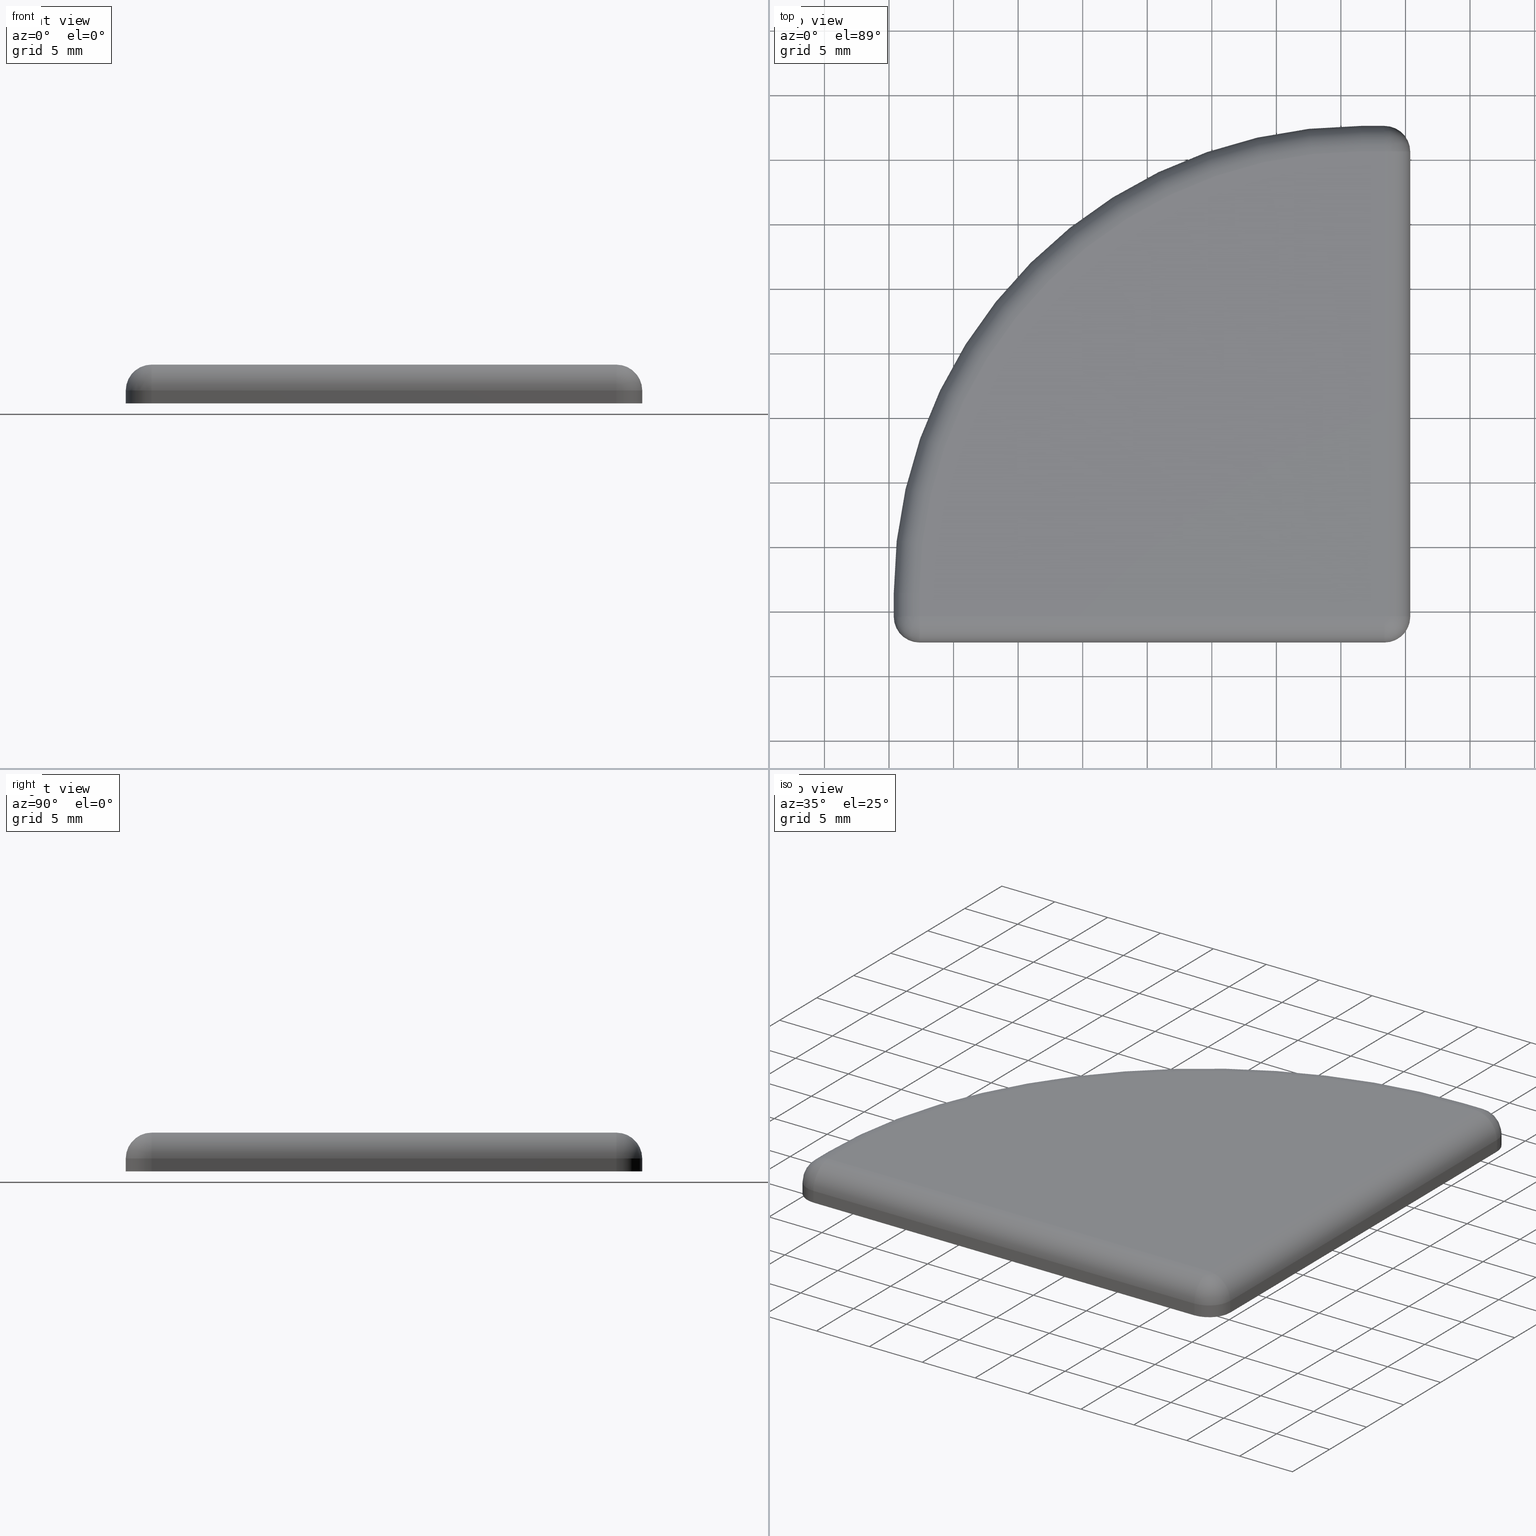
[diagram: canonical four-view strip — front | top / right | iso, engineering-drawing reading convention]
A machine part, canonical four-view strip (front | top / right | iso — engineering-drawing reading convention). The complete STEP part file that produces these views, byte-faithful:
ISO-10303-21;
HEADER;
/* Generated by software containing ST-Developer
 * from STEP Tools, Inc. (www.steptools.com) 
 */

FILE_DESCRIPTION(
/* description */ ('TAPPO 40X40 RAGGIATO NERO'),
/* implementation_level */ '2;1');

FILE_NAME(
/* name */ 'C:\\Users\\tecnico7\\Desktop\\18.071.00.stp',
/* time_stamp */ '2022-07-07T16:30:47+02:00',
/* author */ ('tecnico7'),
/* organization */ (''),
/* preprocessor_version */ 'ST-DEVELOPER v18.1',
/* originating_system */ 'Autodesk Inventor 2022',
/* authorisation */ '');

FILE_SCHEMA (('AUTOMOTIVE_DESIGN { 1 0 10303 214 3 1 1 }'));
ENDSEC;

DATA;
#10=MECHANICAL_DESIGN_GEOMETRIC_PRESENTATION_REPRESENTATION('',(#13),#506);
#11=SHAPE_REPRESENTATION_RELATIONSHIP('SRR','None',#513,#12);
#12=ADVANCED_BREP_SHAPE_REPRESENTATION('',(#14),#505);
#13=STYLED_ITEM('',(#522),#14);
#14=MANIFOLD_SOLID_BREP('Solido1',#276);
#15=PLANE('',#322);
#16=PLANE('',#325);
#17=PLANE('',#326);
#18=PLANE('',#329);
#19=PLANE('',#332);
#20=PLANE('',#333);
#21=SPHERICAL_SURFACE('',#311,2.);
#22=SPHERICAL_SURFACE('',#316,2.);
#23=SPHERICAL_SURFACE('',#318,2.);
#24=TOROIDAL_SURFACE('',#305,34.21,2.);
#25=FACE_OUTER_BOUND('',#43,.T.);
#26=FACE_OUTER_BOUND('',#44,.T.);
#27=FACE_OUTER_BOUND('',#45,.T.);
#28=FACE_OUTER_BOUND('',#46,.T.);
#29=FACE_OUTER_BOUND('',#47,.T.);
#30=FACE_OUTER_BOUND('',#48,.T.);
#31=FACE_OUTER_BOUND('',#49,.T.);
#32=FACE_OUTER_BOUND('',#50,.T.);
#33=FACE_OUTER_BOUND('',#51,.T.);
#34=FACE_OUTER_BOUND('',#52,.T.);
#35=FACE_OUTER_BOUND('',#53,.T.);
#36=FACE_OUTER_BOUND('',#54,.T.);
#37=FACE_OUTER_BOUND('',#55,.T.);
#38=FACE_OUTER_BOUND('',#56,.T.);
#39=FACE_OUTER_BOUND('',#57,.T.);
#40=FACE_OUTER_BOUND('',#58,.T.);
#41=FACE_OUTER_BOUND('',#59,.T.);
#42=FACE_OUTER_BOUND('',#60,.T.);
#43=EDGE_LOOP('',(#176,#177,#178,#179));
#44=EDGE_LOOP('',(#180,#181,#182,#183));
#45=EDGE_LOOP('',(#184,#185,#186,#187));
#46=EDGE_LOOP('',(#188,#189,#190,#191));
#47=EDGE_LOOP('',(#192,#193,#194));
#48=EDGE_LOOP('',(#195,#196,#197,#198));
#49=EDGE_LOOP('',(#199,#200,#201));
#50=EDGE_LOOP('',(#202,#203,#204));
#51=EDGE_LOOP('',(#205,#206,#207,#208));
#52=EDGE_LOOP('',(#209,#210,#211,#212));
#53=EDGE_LOOP('',(#213,#214,#215,#216));
#54=EDGE_LOOP('',(#217,#218,#219,#220));
#55=EDGE_LOOP('',(#221,#222,#223,#224,#225));
#56=EDGE_LOOP('',(#226,#227,#228,#229));
#57=EDGE_LOOP('',(#230,#231,#232,#233));
#58=EDGE_LOOP('',(#234,#235,#236,#237));
#59=EDGE_LOOP('',(#238,#239,#240,#241));
#60=EDGE_LOOP('',(#242,#243,#244,#245,#246,#247,#248,#249));
#61=LINE('',#432,#81);
#62=LINE('',#435,#82);
#63=LINE('',#440,#83);
#64=LINE('',#443,#84);
#65=LINE('',#454,#85);
#66=LINE('',#455,#86);
#67=LINE('',#462,#87);
#68=LINE('',#464,#88);
#69=LINE('',#471,#89);
#70=LINE('',#474,#90);
#71=LINE('',#477,#91);
#72=LINE('',#478,#92);
#73=LINE('',#481,#93);
#74=LINE('',#485,#94);
#75=LINE('',#486,#95);
#76=LINE('',#490,#96);
#77=LINE('',#494,#97);
#78=LINE('',#495,#98);
#79=LINE('',#498,#99);
#80=LINE('',#501,#100);
#81=VECTOR('',#340,10.);
#82=VECTOR('',#343,10.);
#83=VECTOR('',#348,10.);
#84=VECTOR('',#351,10.);
#85=VECTOR('',#364,10.);
#86=VECTOR('',#365,10.);
#87=VECTOR('',#374,10.);
#88=VECTOR('',#377,10.);
#89=VECTOR('',#388,10.);
#90=VECTOR('',#391,10.);
#91=VECTOR('',#394,10.);
#92=VECTOR('',#395,10.);
#93=VECTOR('',#398,10.);
#94=VECTOR('',#403,10.);
#95=VECTOR('',#404,10.);
#96=VECTOR('',#409,10.);
#97=VECTOR('',#414,10.);
#98=VECTOR('',#415,10.);
#99=VECTOR('',#418,10.);
#100=VECTOR('',#423,10.);
#101=CIRCLE('',#300,2.);
#102=CIRCLE('',#301,2.);
#103=CIRCLE('',#303,2.);
#104=CIRCLE('',#304,2.);
#105=CIRCLE('',#306,2.00000000000004);
#106=CIRCLE('',#307,34.21);
#107=CIRCLE('',#308,36.21);
#108=CIRCLE('',#310,2.);
#109=CIRCLE('',#312,2.);
#110=CIRCLE('',#314,2.);
#111=CIRCLE('',#315,2.);
#112=CIRCLE('',#317,2.);
#113=CIRCLE('',#319,2.);
#114=CIRCLE('',#321,2.);
#115=CIRCLE('',#324,2.);
#116=CIRCLE('',#328,2.);
#117=CIRCLE('',#331,36.21);
#118=VERTEX_POINT('',#428);
#119=VERTEX_POINT('',#429);
#120=VERTEX_POINT('',#431);
#121=VERTEX_POINT('',#433);
#122=VERTEX_POINT('',#437);
#123=VERTEX_POINT('',#439);
#124=VERTEX_POINT('',#441);
#125=VERTEX_POINT('',#445);
#126=VERTEX_POINT('',#446);
#127=VERTEX_POINT('',#451);
#128=VERTEX_POINT('',#452);
#129=VERTEX_POINT('',#459);
#130=VERTEX_POINT('',#461);
#131=VERTEX_POINT('',#470);
#132=VERTEX_POINT('',#472);
#133=VERTEX_POINT('',#476);
#134=VERTEX_POINT('',#480);
#135=VERTEX_POINT('',#484);
#136=VERTEX_POINT('',#489);
#137=VERTEX_POINT('',#493);
#138=VERTEX_POINT('',#497);
#139=EDGE_CURVE('',#118,#119,#101,.T.);
#140=EDGE_CURVE('',#119,#120,#61,.T.);
#141=EDGE_CURVE('',#120,#121,#102,.T.);
#142=EDGE_CURVE('',#121,#118,#62,.T.);
#143=EDGE_CURVE('',#121,#122,#103,.T.);
#144=EDGE_CURVE('',#122,#123,#63,.T.);
#145=EDGE_CURVE('',#123,#124,#104,.T.);
#146=EDGE_CURVE('',#124,#121,#64,.T.);
#147=EDGE_CURVE('',#125,#126,#105,.T.);
#148=EDGE_CURVE('',#126,#124,#106,.T.);
#149=EDGE_CURVE('',#123,#125,#107,.T.);
#150=EDGE_CURVE('',#127,#128,#108,.T.);
#151=EDGE_CURVE('',#128,#126,#65,.T.);
#152=EDGE_CURVE('',#125,#127,#66,.T.);
#153=EDGE_CURVE('',#120,#122,#109,.T.);
#154=EDGE_CURVE('',#128,#129,#110,.T.);
#155=EDGE_CURVE('',#129,#130,#67,.T.);
#156=EDGE_CURVE('',#130,#118,#111,.T.);
#157=EDGE_CURVE('',#118,#128,#68,.T.);
#158=EDGE_CURVE('',#127,#129,#112,.T.);
#159=EDGE_CURVE('',#130,#119,#113,.T.);
#160=EDGE_CURVE('',#131,#120,#69,.T.);
#161=EDGE_CURVE('',#131,#132,#114,.T.);
#162=EDGE_CURVE('',#132,#122,#70,.T.);
#163=EDGE_CURVE('',#133,#119,#71,.T.);
#164=EDGE_CURVE('',#133,#131,#72,.T.);
#165=EDGE_CURVE('',#134,#130,#73,.T.);
#166=EDGE_CURVE('',#134,#133,#115,.T.);
#167=EDGE_CURVE('',#135,#129,#74,.T.);
#168=EDGE_CURVE('',#135,#134,#75,.T.);
#169=EDGE_CURVE('',#136,#127,#76,.T.);
#170=EDGE_CURVE('',#136,#135,#116,.T.);
#171=EDGE_CURVE('',#137,#125,#77,.T.);
#172=EDGE_CURVE('',#137,#136,#78,.T.);
#173=EDGE_CURVE('',#138,#123,#79,.T.);
#174=EDGE_CURVE('',#138,#137,#117,.T.);
#175=EDGE_CURVE('',#132,#138,#80,.T.);
#176=ORIENTED_EDGE('',*,*,#139,.T.);
#177=ORIENTED_EDGE('',*,*,#140,.T.);
#178=ORIENTED_EDGE('',*,*,#141,.T.);
#179=ORIENTED_EDGE('',*,*,#142,.T.);
#180=ORIENTED_EDGE('',*,*,#143,.T.);
#181=ORIENTED_EDGE('',*,*,#144,.T.);
#182=ORIENTED_EDGE('',*,*,#145,.T.);
#183=ORIENTED_EDGE('',*,*,#146,.T.);
#184=ORIENTED_EDGE('',*,*,#147,.T.);
#185=ORIENTED_EDGE('',*,*,#148,.T.);
#186=ORIENTED_EDGE('',*,*,#145,.F.);
#187=ORIENTED_EDGE('',*,*,#149,.T.);
#188=ORIENTED_EDGE('',*,*,#150,.T.);
#189=ORIENTED_EDGE('',*,*,#151,.T.);
#190=ORIENTED_EDGE('',*,*,#147,.F.);
#191=ORIENTED_EDGE('',*,*,#152,.T.);
#192=ORIENTED_EDGE('',*,*,#143,.F.);
#193=ORIENTED_EDGE('',*,*,#141,.F.);
#194=ORIENTED_EDGE('',*,*,#153,.T.);
#195=ORIENTED_EDGE('',*,*,#154,.T.);
#196=ORIENTED_EDGE('',*,*,#155,.T.);
#197=ORIENTED_EDGE('',*,*,#156,.T.);
#198=ORIENTED_EDGE('',*,*,#157,.T.);
#199=ORIENTED_EDGE('',*,*,#154,.F.);
#200=ORIENTED_EDGE('',*,*,#150,.F.);
#201=ORIENTED_EDGE('',*,*,#158,.T.);
#202=ORIENTED_EDGE('',*,*,#139,.F.);
#203=ORIENTED_EDGE('',*,*,#156,.F.);
#204=ORIENTED_EDGE('',*,*,#159,.T.);
#205=ORIENTED_EDGE('',*,*,#153,.F.);
#206=ORIENTED_EDGE('',*,*,#160,.F.);
#207=ORIENTED_EDGE('',*,*,#161,.T.);
#208=ORIENTED_EDGE('',*,*,#162,.T.);
#209=ORIENTED_EDGE('',*,*,#140,.F.);
#210=ORIENTED_EDGE('',*,*,#163,.F.);
#211=ORIENTED_EDGE('',*,*,#164,.T.);
#212=ORIENTED_EDGE('',*,*,#160,.T.);
#213=ORIENTED_EDGE('',*,*,#159,.F.);
#214=ORIENTED_EDGE('',*,*,#165,.F.);
#215=ORIENTED_EDGE('',*,*,#166,.T.);
#216=ORIENTED_EDGE('',*,*,#163,.T.);
#217=ORIENTED_EDGE('',*,*,#155,.F.);
#218=ORIENTED_EDGE('',*,*,#167,.F.);
#219=ORIENTED_EDGE('',*,*,#168,.T.);
#220=ORIENTED_EDGE('',*,*,#165,.T.);
#221=ORIENTED_EDGE('',*,*,#142,.F.);
#222=ORIENTED_EDGE('',*,*,#146,.F.);
#223=ORIENTED_EDGE('',*,*,#148,.F.);
#224=ORIENTED_EDGE('',*,*,#151,.F.);
#225=ORIENTED_EDGE('',*,*,#157,.F.);
#226=ORIENTED_EDGE('',*,*,#158,.F.);
#227=ORIENTED_EDGE('',*,*,#169,.F.);
#228=ORIENTED_EDGE('',*,*,#170,.T.);
#229=ORIENTED_EDGE('',*,*,#167,.T.);
#230=ORIENTED_EDGE('',*,*,#152,.F.);
#231=ORIENTED_EDGE('',*,*,#171,.F.);
#232=ORIENTED_EDGE('',*,*,#172,.T.);
#233=ORIENTED_EDGE('',*,*,#169,.T.);
#234=ORIENTED_EDGE('',*,*,#149,.F.);
#235=ORIENTED_EDGE('',*,*,#173,.F.);
#236=ORIENTED_EDGE('',*,*,#174,.T.);
#237=ORIENTED_EDGE('',*,*,#171,.T.);
#238=ORIENTED_EDGE('',*,*,#144,.F.);
#239=ORIENTED_EDGE('',*,*,#162,.F.);
#240=ORIENTED_EDGE('',*,*,#175,.T.);
#241=ORIENTED_EDGE('',*,*,#173,.T.);
#242=ORIENTED_EDGE('',*,*,#168,.F.);
#243=ORIENTED_EDGE('',*,*,#170,.F.);
#244=ORIENTED_EDGE('',*,*,#172,.F.);
#245=ORIENTED_EDGE('',*,*,#174,.F.);
#246=ORIENTED_EDGE('',*,*,#175,.F.);
#247=ORIENTED_EDGE('',*,*,#161,.F.);
#248=ORIENTED_EDGE('',*,*,#164,.F.);
#249=ORIENTED_EDGE('',*,*,#166,.F.);
#250=CYLINDRICAL_SURFACE('',#299,2.);
#251=CYLINDRICAL_SURFACE('',#302,2.);
#252=CYLINDRICAL_SURFACE('',#309,2.);
#253=CYLINDRICAL_SURFACE('',#313,2.);
#254=CYLINDRICAL_SURFACE('',#320,2.);
#255=CYLINDRICAL_SURFACE('',#323,2.);
#256=CYLINDRICAL_SURFACE('',#327,2.);
#257=CYLINDRICAL_SURFACE('',#330,36.21);
#258=ADVANCED_FACE('',(#25),#250,.T.);
#259=ADVANCED_FACE('',(#26),#251,.T.);
#260=ADVANCED_FACE('',(#27),#24,.T.);
#261=ADVANCED_FACE('',(#28),#252,.T.);
#262=ADVANCED_FACE('',(#29),#21,.T.);
#263=ADVANCED_FACE('',(#30),#253,.T.);
#264=ADVANCED_FACE('',(#31),#22,.T.);
#265=ADVANCED_FACE('',(#32),#23,.T.);
#266=ADVANCED_FACE('',(#33),#254,.T.);
#267=ADVANCED_FACE('',(#34),#15,.T.);
#268=ADVANCED_FACE('',(#35),#255,.T.);
#269=ADVANCED_FACE('',(#36),#16,.T.);
#270=ADVANCED_FACE('',(#37),#17,.T.);
#271=ADVANCED_FACE('',(#38),#256,.T.);
#272=ADVANCED_FACE('',(#39),#18,.T.);
#273=ADVANCED_FACE('',(#40),#257,.T.);
#274=ADVANCED_FACE('',(#41),#19,.T.);
#275=ADVANCED_FACE('',(#42),#20,.F.);
#276=CLOSED_SHELL('',(#258,#259,#260,#261,#262,#263,#264,#265,#266,#267,
#268,#269,#270,#271,#272,#273,#274,#275));
#277=DERIVED_UNIT_ELEMENT(#280,1.);
#278=DERIVED_UNIT_ELEMENT(#508,-3.);
#279=DIMENSIONAL_EXPONENTS(1.,0.,0.,0.,0.,0.,0.);
#280=(
CONVERSION_BASED_UNIT('gram',#282)
MASS_UNIT()
NAMED_UNIT(#279)
);
#281=(
MASS_UNIT()
NAMED_UNIT(*)
SI_UNIT(.KILO.,.GRAM.)
);
#282=MASS_MEASURE_WITH_UNIT(MASS_MEASURE(0.001),#281);
#283=DERIVED_UNIT((#277,#278));
#284=MEASURE_REPRESENTATION_ITEM('density measure',
POSITIVE_RATIO_MEASURE(1.13),#283);
#285=PROPERTY_DEFINITION_REPRESENTATION(#290,#287);
#286=PROPERTY_DEFINITION_REPRESENTATION(#291,#288);
#287=REPRESENTATION('material name',(#289),#505);
#288=REPRESENTATION('density',(#284),#505);
#289=DESCRIPTIVE_REPRESENTATION_ITEM('NYLON','NYLON');
#290=PROPERTY_DEFINITION('material property','material name',#515);
#291=PROPERTY_DEFINITION('material property','density of part',#515);
#292=DATE_TIME_ROLE('creation_date');
#293=APPLIED_DATE_AND_TIME_ASSIGNMENT(#294,#292,(#515));
#294=DATE_AND_TIME(#295,#296);
#295=CALENDAR_DATE(2014,7,8);
#296=LOCAL_TIME(0,0,0.,#297);
#297=COORDINATED_UNIVERSAL_TIME_OFFSET(0,0,.BEHIND.);
#298=AXIS2_PLACEMENT_3D('placement',#426,#334,#335);
#299=AXIS2_PLACEMENT_3D('',#427,#336,#337);
#300=AXIS2_PLACEMENT_3D('',#430,#338,#339);
#301=AXIS2_PLACEMENT_3D('',#434,#341,#342);
#302=AXIS2_PLACEMENT_3D('',#436,#344,#345);
#303=AXIS2_PLACEMENT_3D('',#438,#346,#347);
#304=AXIS2_PLACEMENT_3D('',#442,#349,#350);
#305=AXIS2_PLACEMENT_3D('',#444,#352,#353);
#306=AXIS2_PLACEMENT_3D('',#447,#354,#355);
#307=AXIS2_PLACEMENT_3D('',#448,#356,#357);
#308=AXIS2_PLACEMENT_3D('',#449,#358,#359);
#309=AXIS2_PLACEMENT_3D('',#450,#360,#361);
#310=AXIS2_PLACEMENT_3D('',#453,#362,#363);
#311=AXIS2_PLACEMENT_3D('',#456,#366,#367);
#312=AXIS2_PLACEMENT_3D('',#457,#368,#369);
#313=AXIS2_PLACEMENT_3D('',#458,#370,#371);
#314=AXIS2_PLACEMENT_3D('',#460,#372,#373);
#315=AXIS2_PLACEMENT_3D('',#463,#375,#376);
#316=AXIS2_PLACEMENT_3D('',#465,#378,#379);
#317=AXIS2_PLACEMENT_3D('',#466,#380,#381);
#318=AXIS2_PLACEMENT_3D('',#467,#382,#383);
#319=AXIS2_PLACEMENT_3D('',#468,#384,#385);
#320=AXIS2_PLACEMENT_3D('',#469,#386,#387);
#321=AXIS2_PLACEMENT_3D('',#473,#389,#390);
#322=AXIS2_PLACEMENT_3D('',#475,#392,#393);
#323=AXIS2_PLACEMENT_3D('',#479,#396,#397);
#324=AXIS2_PLACEMENT_3D('',#482,#399,#400);
#325=AXIS2_PLACEMENT_3D('',#483,#401,#402);
#326=AXIS2_PLACEMENT_3D('',#487,#405,#406);
#327=AXIS2_PLACEMENT_3D('',#488,#407,#408);
#328=AXIS2_PLACEMENT_3D('',#491,#410,#411);
#329=AXIS2_PLACEMENT_3D('',#492,#412,#413);
#330=AXIS2_PLACEMENT_3D('',#496,#416,#417);
#331=AXIS2_PLACEMENT_3D('',#499,#419,#420);
#332=AXIS2_PLACEMENT_3D('',#500,#421,#422);
#333=AXIS2_PLACEMENT_3D('',#502,#424,#425);
#334=DIRECTION('axis',(0.,0.,1.));
#335=DIRECTION('refdir',(1.,0.,0.));
#336=DIRECTION('center_axis',(-6.41462192005654E-15,1.,0.));
#337=DIRECTION('ref_axis',(0.707106781186549,4.71027737605131E-15,0.707106781186546));
#338=DIRECTION('center_axis',(-6.66133814775093E-15,1.,0.));
#339=DIRECTION('ref_axis',(0.,0.,1.));
#340=DIRECTION('',(-6.41462192005654E-15,1.,0.));
#341=DIRECTION('center_axis',(4.44089209850062E-15,-1.,0.));
#342=DIRECTION('ref_axis',(1.,4.44089209850062E-15,0.));
#343=DIRECTION('',(6.41462192005654E-15,-1.,0.));
#344=DIRECTION('center_axis',(-1.,1.29009155934115E-13,0.));
#345=DIRECTION('ref_axis',(9.10653626036591E-14,0.707106781186546,0.707106781186549));
#346=DIRECTION('center_axis',(-1.,1.28785870856518E-13,0.));
#347=DIRECTION('ref_axis',(0.,0.,1.));
#348=DIRECTION('',(-1.,1.29009155934115E-13,0.));
#349=DIRECTION('center_axis',(1.,-1.28785870856518E-13,0.));
#350=DIRECTION('ref_axis',(1.28785870856518E-13,1.,0.));
#351=DIRECTION('',(1.,-1.29009155934115E-13,0.));
#352=DIRECTION('center_axis',(0.,0.,1.));
#353=DIRECTION('ref_axis',(1.,0.,0.));
#354=DIRECTION('center_axis',(-4.44089209850053E-15,1.,0.));
#355=DIRECTION('ref_axis',(-1.,-4.44089209850053E-15,0.));
#356=DIRECTION('center_axis',(0.,0.,-1.));
#357=DIRECTION('ref_axis',(-0.707106781186547,0.707106781186548,0.));
#358=DIRECTION('center_axis',(0.,0.,1.));
#359=DIRECTION('ref_axis',(-0.707106781186547,0.707106781186548,0.));
#360=DIRECTION('center_axis',(-1.27148446954296E-13,-1.,0.));
#361=DIRECTION('ref_axis',(-0.707106781186547,8.94952701449752E-14,0.707106781186548));
#362=DIRECTION('center_axis',(1.27675647831893E-13,1.,0.));
#363=DIRECTION('ref_axis',(-1.,1.27675647831893E-13,0.));
#364=DIRECTION('',(1.27148446954296E-13,1.,0.));
#365=DIRECTION('',(-1.27148446954296E-13,-1.,0.));
#366=DIRECTION('center_axis',(0.408248290463852,-0.816496580927711,0.408248290463903));
#367=DIRECTION('ref_axis',(0.57735026918958,0.577350269189647,0.577350269189651));
#368=DIRECTION('center_axis',(0.,0.,1.));
#369=DIRECTION('ref_axis',(1.,0.,0.));
#370=DIRECTION('center_axis',(1.,0.,0.));
#371=DIRECTION('ref_axis',(0.,-0.707106781186547,0.707106781186548));
#372=DIRECTION('center_axis',(1.,0.,0.));
#373=DIRECTION('ref_axis',(0.,0.,1.));
#374=DIRECTION('',(1.,0.,0.));
#375=DIRECTION('center_axis',(-1.,0.,0.));
#376=DIRECTION('ref_axis',(0.,-1.,0.));
#377=DIRECTION('',(-1.,0.,0.));
#378=DIRECTION('center_axis',(-0.816496580927743,0.408248290463872,-0.40824829046382));
#379=DIRECTION('ref_axis',(-0.577350269189602,-0.577350269189675,0.577350269189601));
#380=DIRECTION('center_axis',(0.,0.,1.));
#381=DIRECTION('ref_axis',(-1.,0.,0.));
#382=DIRECTION('center_axis',(0.408248290463863,-0.408248290463863,-0.816496580927726));
#383=DIRECTION('ref_axis',(0.577350269189626,-0.577350269189626,0.577350269189626));
#384=DIRECTION('center_axis',(0.,0.,1.));
#385=DIRECTION('ref_axis',(0.,-1.,0.));
#386=DIRECTION('center_axis',(0.,0.,1.));
#387=DIRECTION('ref_axis',(1.,0.,0.));
#388=DIRECTION('',(0.,0.,1.));
#389=DIRECTION('center_axis',(0.,0.,1.));
#390=DIRECTION('ref_axis',(1.,0.,0.));
#391=DIRECTION('',(0.,0.,1.));
#392=DIRECTION('center_axis',(1.,6.41462192005654E-15,0.));
#393=DIRECTION('ref_axis',(-6.41462192005654E-15,1.,0.));
#394=DIRECTION('',(0.,0.,1.));
#395=DIRECTION('',(-6.41462192005654E-15,1.,0.));
#396=DIRECTION('center_axis',(0.,0.,1.));
#397=DIRECTION('ref_axis',(0.,-1.,0.));
#398=DIRECTION('',(0.,0.,1.));
#399=DIRECTION('center_axis',(0.,0.,1.));
#400=DIRECTION('ref_axis',(0.,-1.,0.));
#401=DIRECTION('center_axis',(0.,-1.,0.));
#402=DIRECTION('ref_axis',(1.,0.,0.));
#403=DIRECTION('',(0.,0.,1.));
#404=DIRECTION('',(1.,0.,0.));
#405=DIRECTION('center_axis',(0.,0.,1.));
#406=DIRECTION('ref_axis',(1.,0.,0.));
#407=DIRECTION('center_axis',(0.,0.,1.));
#408=DIRECTION('ref_axis',(-1.,0.,0.));
#409=DIRECTION('',(0.,0.,1.));
#410=DIRECTION('center_axis',(0.,0.,1.));
#411=DIRECTION('ref_axis',(-1.,0.,0.));
#412=DIRECTION('center_axis',(-1.,1.27148446954296E-13,0.));
#413=DIRECTION('ref_axis',(-1.27148446954296E-13,-1.,0.));
#414=DIRECTION('',(0.,0.,1.));
#415=DIRECTION('',(-1.27148446954296E-13,-1.,0.));
#416=DIRECTION('center_axis',(0.,0.,1.));
#417=DIRECTION('ref_axis',(0.,1.,0.));
#418=DIRECTION('',(0.,0.,1.));
#419=DIRECTION('center_axis',(0.,0.,1.));
#420=DIRECTION('ref_axis',(0.,1.,0.));
#421=DIRECTION('center_axis',(1.29009155934115E-13,1.,0.));
#422=DIRECTION('ref_axis',(-1.,1.29009155934115E-13,0.));
#423=DIRECTION('',(-1.,1.29009155934115E-13,0.));
#424=DIRECTION('center_axis',(0.,0.,1.));
#425=DIRECTION('ref_axis',(1.,0.,0.));
#426=CARTESIAN_POINT('',(0.,0.,0.));
#427=CARTESIAN_POINT('Origin',(43.3692019380737,11.7620032159202,1.));
#428=CARTESIAN_POINT('',(43.3692019380737,4.63083275760073,3.));
#429=CARTESIAN_POINT('',(45.3692019380737,4.63083275760073,1.));
#430=CARTESIAN_POINT('Origin',(43.3692019380737,4.63083275760072,1.));
#431=CARTESIAN_POINT('',(45.3692019380735,40.6308327576003,1.));
#432=CARTESIAN_POINT('',(45.3692019380737,11.7620032159202,1.));
#433=CARTESIAN_POINT('',(43.3692019380735,40.6308327576003,3.));
#434=CARTESIAN_POINT('Origin',(43.3692019380735,40.6308327576003,1.));
#435=CARTESIAN_POINT('',(43.3692019380737,11.7620032159202,3.));
#436=CARTESIAN_POINT('Origin',(36.2380314797552,40.6308327576012,1.));
#437=CARTESIAN_POINT('',(43.3692019380733,42.6308327576003,1.));
#438=CARTESIAN_POINT('Origin',(43.369201938073,40.6308327576003,1.));
#439=CARTESIAN_POINT('',(41.5792019380735,42.6308327576005,1.));
#440=CARTESIAN_POINT('',(36.2380314797554,42.6308327576012,1.));
#441=CARTESIAN_POINT('',(41.5792019380733,40.6308327576005,3.));
#442=CARTESIAN_POINT('Origin',(41.5792019380733,40.6308327576005,1.));
#443=CARTESIAN_POINT('',(36.2380314797552,40.6308327576012,3.));
#444=CARTESIAN_POINT('Origin',(41.5792019380735,6.42083275760046,1.));
#445=CARTESIAN_POINT('',(5.3692019380735,6.42083275760046,1.));
#446=CARTESIAN_POINT('',(7.36920193807354,6.42083275760047,3.));
#447=CARTESIAN_POINT('Origin',(7.36920193807354,6.42083275760047,1.));
#448=CARTESIAN_POINT('Origin',(41.5792019380735,6.42083275760046,3.));
#449=CARTESIAN_POINT('Origin',(41.5792019380735,6.42083275760046,1.));
#450=CARTESIAN_POINT('Origin',(7.36920193807429,12.6570032159212,1.));
#451=CARTESIAN_POINT('',(5.36920193807327,4.63083275760073,1.));
#452=CARTESIAN_POINT('',(7.36920193807327,4.63083275760047,3.));
#453=CARTESIAN_POINT('Origin',(7.36920193807327,4.63083275760047,1.));
#454=CARTESIAN_POINT('',(7.36920193807429,12.6570032159212,3.));
#455=CARTESIAN_POINT('',(5.3692019380743,12.6570032159215,1.));
#456=CARTESIAN_POINT('Origin',(43.3692019380735,40.6308327576003,1.));
#457=CARTESIAN_POINT('Origin',(43.3692019380735,40.6308327576003,1.));
#458=CARTESIAN_POINT('Origin',(18.2380314797539,4.63083275760073,1.));
#459=CARTESIAN_POINT('',(7.36920193807328,2.63083275760073,1.));
#460=CARTESIAN_POINT('Origin',(7.36920193807328,4.63083275760073,1.));
#461=CARTESIAN_POINT('',(43.3692019380737,2.63083275760073,1.));
#462=CARTESIAN_POINT('',(18.2380314797539,2.63083275760073,1.));
#463=CARTESIAN_POINT('Origin',(43.3692019380737,4.63083275760073,1.));
#464=CARTESIAN_POINT('',(18.2380314797539,4.63083275760073,3.));
#465=CARTESIAN_POINT('Origin',(7.36920193807328,4.63083275760073,1.));
#466=CARTESIAN_POINT('Origin',(7.36920193807328,4.63083275760073,1.));
#467=CARTESIAN_POINT('Origin',(43.3692019380737,4.63083275760073,1.));
#468=CARTESIAN_POINT('Origin',(43.3692019380737,4.63083275760073,1.));
#469=CARTESIAN_POINT('Origin',(43.3692019380735,40.6308327576003,0.));
#470=CARTESIAN_POINT('',(45.3692019380735,40.6308327576003,0.));
#471=CARTESIAN_POINT('',(45.3692019380735,40.6308327576003,0.));
#472=CARTESIAN_POINT('',(43.3692019380733,42.6308327576003,0.));
#473=CARTESIAN_POINT('Origin',(43.3692019380735,40.6308327576003,0.));
#474=CARTESIAN_POINT('',(43.3692019380733,42.6308327576003,0.));
#475=CARTESIAN_POINT('Origin',(45.3692019380737,4.63083275760073,0.));
#476=CARTESIAN_POINT('',(45.3692019380737,4.63083275760073,0.));
#477=CARTESIAN_POINT('',(45.3692019380737,4.63083275760073,0.));
#478=CARTESIAN_POINT('',(45.3692019380737,4.63083275760073,0.));
#479=CARTESIAN_POINT('Origin',(43.3692019380737,4.63083275760073,0.));
#480=CARTESIAN_POINT('',(43.3692019380737,2.63083275760073,0.));
#481=CARTESIAN_POINT('',(43.3692019380737,2.63083275760073,0.));
#482=CARTESIAN_POINT('Origin',(43.3692019380737,4.63083275760073,0.));
#483=CARTESIAN_POINT('Origin',(7.36920193807328,2.63083275760073,0.));
#484=CARTESIAN_POINT('',(7.36920193807328,2.63083275760073,0.));
#485=CARTESIAN_POINT('',(7.36920193807328,2.63083275760073,0.));
#486=CARTESIAN_POINT('',(7.36920193807328,2.63083275760073,0.));
#487=CARTESIAN_POINT('Origin',(29.1068610214345,18.8931736742395,3.));
#488=CARTESIAN_POINT('Origin',(7.36920193807328,4.63083275760073,0.));
#489=CARTESIAN_POINT('',(5.36920193807327,4.63083275760073,0.));
#490=CARTESIAN_POINT('',(5.36920193807327,4.63083275760073,0.));
#491=CARTESIAN_POINT('Origin',(7.36920193807328,4.63083275760073,0.));
#492=CARTESIAN_POINT('Origin',(5.3692019380735,6.42083275760046,0.));
#493=CARTESIAN_POINT('',(5.3692019380735,6.42083275760046,0.));
#494=CARTESIAN_POINT('',(5.3692019380735,6.42083275760046,0.));
#495=CARTESIAN_POINT('',(5.3692019380735,6.42083275760046,0.));
#496=CARTESIAN_POINT('Origin',(41.5792019380735,6.42083275760046,0.));
#497=CARTESIAN_POINT('',(41.5792019380735,42.6308327576005,0.));
#498=CARTESIAN_POINT('',(41.5792019380735,42.6308327576005,0.));
#499=CARTESIAN_POINT('Origin',(41.5792019380735,6.42083275760046,0.));
#500=CARTESIAN_POINT('Origin',(43.3692019380733,42.6308327576003,0.));
#501=CARTESIAN_POINT('',(43.3692019380733,42.6308327576003,0.));
#502=CARTESIAN_POINT('Origin',(29.1068610214345,18.8931736742395,0.));
#503=UNCERTAINTY_MEASURE_WITH_UNIT(LENGTH_MEASURE(0.01),#507,
'DISTANCE_ACCURACY_VALUE',
'Maximum model space distance between geometric entities at asserted c
onnectivities');
#504=UNCERTAINTY_MEASURE_WITH_UNIT(LENGTH_MEASURE(0.01),#507,
'DISTANCE_ACCURACY_VALUE',
'Maximum model space distance between geometric entities at asserted c
onnectivities');
#505=(
GEOMETRIC_REPRESENTATION_CONTEXT(3)
GLOBAL_UNCERTAINTY_ASSIGNED_CONTEXT((#503))
GLOBAL_UNIT_ASSIGNED_CONTEXT((#507,#509,#510))
REPRESENTATION_CONTEXT('','3D')
);
#506=(
GEOMETRIC_REPRESENTATION_CONTEXT(3)
GLOBAL_UNCERTAINTY_ASSIGNED_CONTEXT((#504))
GLOBAL_UNIT_ASSIGNED_CONTEXT((#507,#509,#510))
REPRESENTATION_CONTEXT('','3D')
);
#507=(
LENGTH_UNIT()
NAMED_UNIT(*)
SI_UNIT(.MILLI.,.METRE.)
);
#508=(
LENGTH_UNIT()
NAMED_UNIT(*)
SI_UNIT(.CENTI.,.METRE.)
);
#509=(
NAMED_UNIT(*)
PLANE_ANGLE_UNIT()
SI_UNIT($,.RADIAN.)
);
#510=(
NAMED_UNIT(*)
SI_UNIT($,.STERADIAN.)
SOLID_ANGLE_UNIT()
);
#511=SHAPE_DEFINITION_REPRESENTATION(#512,#513);
#512=PRODUCT_DEFINITION_SHAPE('',$,#515);
#513=SHAPE_REPRESENTATION('',(#298),#505);
#514=PRODUCT_DEFINITION_CONTEXT('part definition',#519,'design');
#515=PRODUCT_DEFINITION('18.071.00','18.071.00',#516,#514);
#516=PRODUCT_DEFINITION_FORMATION('A',$,#521);
#517=PRODUCT_RELATED_PRODUCT_CATEGORY('18.071.00','18.071.00',(#521));
#518=APPLICATION_PROTOCOL_DEFINITION('international standard',
'automotive_design',2009,#519);
#519=APPLICATION_CONTEXT(
'Core Data for Automotive Mechanical Design Process');
#520=PRODUCT_CONTEXT('part definition',#519,'mechanical');
#521=PRODUCT('18.071.00','18.071.00','TAPPO 40X40 RAGGIATO NERO',(#520));
#522=PRESENTATION_STYLE_ASSIGNMENT((#523));
#523=SURFACE_STYLE_USAGE(.BOTH.,#526);
#524=SURFACE_STYLE_RENDERING_WITH_PROPERTIES($,#530,(#525));
#525=SURFACE_STYLE_TRANSPARENT(0.);
#526=SURFACE_SIDE_STYLE('',(#527,#524));
#527=SURFACE_STYLE_FILL_AREA(#528);
#528=FILL_AREA_STYLE('',(#529));
#529=FILL_AREA_STYLE_COLOUR('',#530);
#530=COLOUR_RGB('',0.16078431372549,0.16078431372549,0.16078431372549);
ENDSEC;
END-ISO-10303-21;
